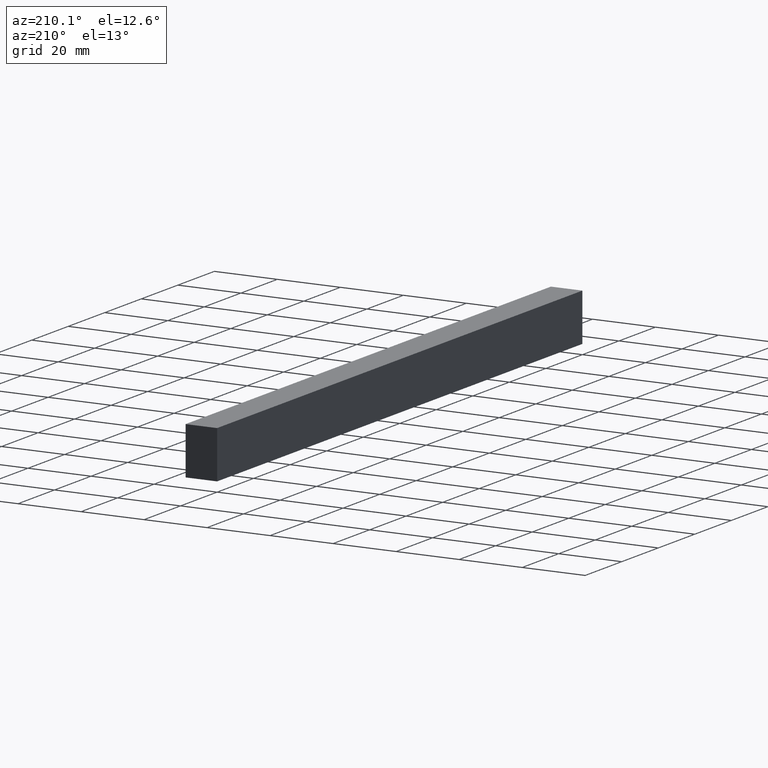
[diagram: clean part render]
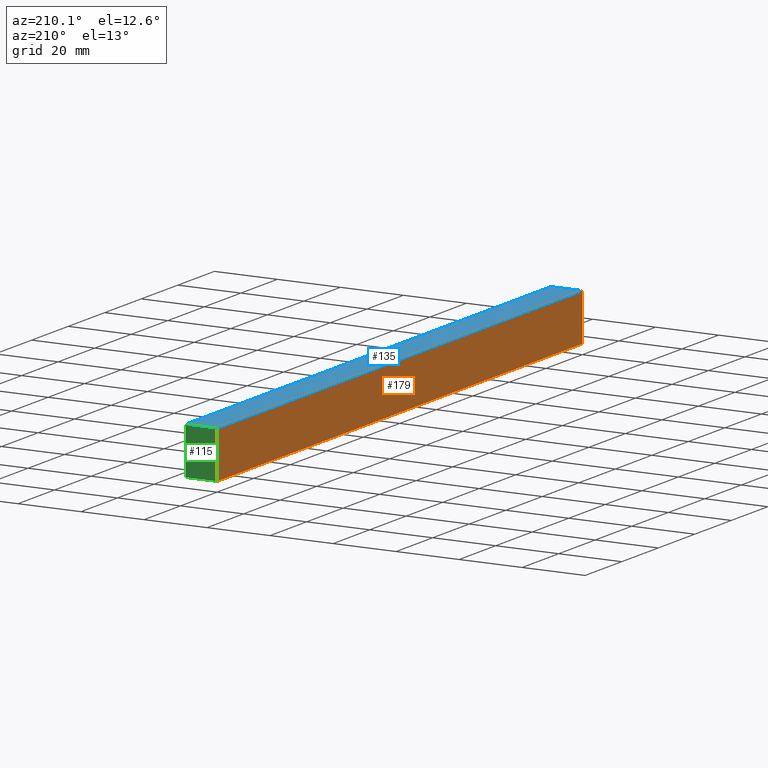
[diagram: same view with three faces highlighted in distinct colors, each labeled with its STEP entity id]
A machine part, auxiliary view with three faces highlighted in distinct colors.
Their STEP definitions:

[orange] entity #179 — the highlighted face is a freeform B-spline surface patch.
#49=CARTESIAN_POINT('',(0.0,0.0,15.0));
#50=VERTEX_POINT('',#49);
#51=CARTESIAN_POINT('',(0.0,0.0,0.0));
#52=VERTEX_POINT('',#51);
#53=CARTESIAN_POINT('',(0.0,0.0,15.0));
#54=CARTESIAN_POINT('',(0.0,0.0,0.0));
#55=QUASI_UNIFORM_CURVE('',1,(#53,#54),.UNSPECIFIED.,.F.,.U.);
#56=EDGE_CURVE('',#50,#52,#55,.T.);
#85=CARTESIAN_POINT('',(0.0,200.0,15.0));
#86=VERTEX_POINT('',#85);
#87=CARTESIAN_POINT('',(0.0,200.0,0.0));
#88=VERTEX_POINT('',#87);
#89=CARTESIAN_POINT('',(0.0,200.0,15.0));
#90=CARTESIAN_POINT('',(0.0,200.0,0.0));
#91=QUASI_UNIFORM_CURVE('',1,(#89,#90),.UNSPECIFIED.,.F.,.U.);
#92=EDGE_CURVE('',#86,#88,#91,.T.);
#128=CARTESIAN_POINT('',(0.0,200.0,15.0));
#129=CARTESIAN_POINT('',(0.0,0.0,15.0));
#130=QUASI_UNIFORM_CURVE('',1,(#128,#129),.UNSPECIFIED.,.F.,.U.);
#131=EDGE_CURVE('',#86,#50,#130,.T.);
#158=CARTESIAN_POINT('',(0.0,200.0,0.0));
#159=CARTESIAN_POINT('',(0.0,0.0,0.0));
#160=QUASI_UNIFORM_CURVE('',1,(#158,#159),.UNSPECIFIED.,.F.,.U.);
#161=EDGE_CURVE('',#88,#52,#160,.T.);
#168=CARTESIAN_POINT('',(0.0,-9.989999612361171,-0.749249970927090));
#169=CARTESIAN_POINT('',(0.0,-9.989999612361171,15.749250373258439));
#170=CARTESIAN_POINT('',(0.0,209.990004976779200,-0.749249970927090));
#171=CARTESIAN_POINT('',(0.0,209.990004976779200,15.749250373258439));
#172=B_SPLINE_SURFACE_WITH_KNOTS('',1,1,((#168,#170),(#169,#171)),.UNSPECIFIED.,.F.,.F.,.U.,(2,2),(2,2),(0.0,16.498500344185530),(0.0,219.980004589140410),.UNSPECIFIED.);
#173=ORIENTED_EDGE('',*,*,#56,.F.);
#174=ORIENTED_EDGE('',*,*,#131,.F.);
#175=ORIENTED_EDGE('',*,*,#92,.T.);
#176=ORIENTED_EDGE('',*,*,#161,.T.);
#177=EDGE_LOOP('',(#173,#174,#175,#176));
#178=FACE_OUTER_BOUND('',#177,.T.);
#179=ADVANCED_FACE('',(#178),#172,.T.);

[blue] entity #135 — the highlighted face is a freeform B-spline surface patch.
#49=CARTESIAN_POINT('',(0.0,0.0,15.0));
#50=VERTEX_POINT('',#49);
#65=CARTESIAN_POINT('',(10.0,0.0,15.0));
#66=VERTEX_POINT('',#65);
#72=CARTESIAN_POINT('',(10.0,0.0,15.0));
#73=CARTESIAN_POINT('',(0.0,0.0,15.0));
#74=QUASI_UNIFORM_CURVE('',1,(#72,#73),.UNSPECIFIED.,.F.,.U.);
#75=EDGE_CURVE('',#66,#50,#74,.T.);
#85=CARTESIAN_POINT('',(0.0,200.0,15.0));
#86=VERTEX_POINT('',#85);
#94=CARTESIAN_POINT('',(10.0,200.0,15.0));
#95=VERTEX_POINT('',#94);
#96=CARTESIAN_POINT('',(10.0,200.0,15.0));
#97=CARTESIAN_POINT('',(0.0,200.0,15.0));
#98=QUASI_UNIFORM_CURVE('',1,(#96,#97),.UNSPECIFIED.,.F.,.U.);
#99=EDGE_CURVE('',#95,#86,#98,.T.);
#116=CARTESIAN_POINT('',(-0.499499980618059,-9.989999612361171,15.0));
#117=CARTESIAN_POINT('',(10.499500248838959,-9.989999612361171,15.0));
#118=CARTESIAN_POINT('',(-0.499499980618059,209.990004976779200,15.0));
#119=CARTESIAN_POINT('',(10.499500248838959,209.990004976779200,15.0));
#120=B_SPLINE_SURFACE_WITH_KNOTS('',1,1,((#116,#118),(#117,#119)),.UNSPECIFIED.,.F.,.F.,.U.,(2,2),(2,2),(0.0,10.999000229457019),(0.0,219.980004589140410),.UNSPECIFIED.);
#121=ORIENTED_EDGE('',*,*,#75,.F.);
#122=CARTESIAN_POINT('',(10.0,200.0,15.0));
#123=CARTESIAN_POINT('',(10.0,0.0,15.0));
#124=QUASI_UNIFORM_CURVE('',1,(#122,#123),.UNSPECIFIED.,.F.,.U.);
#125=EDGE_CURVE('',#95,#66,#124,.T.);
#126=ORIENTED_EDGE('',*,*,#125,.F.);
#127=ORIENTED_EDGE('',*,*,#99,.T.);
#128=CARTESIAN_POINT('',(0.0,200.0,15.0));
#129=CARTESIAN_POINT('',(0.0,0.0,15.0));
#130=QUASI_UNIFORM_CURVE('',1,(#128,#129),.UNSPECIFIED.,.F.,.U.);
#131=EDGE_CURVE('',#86,#50,#130,.T.);
#132=ORIENTED_EDGE('',*,*,#131,.T.);
#133=EDGE_LOOP('',(#121,#126,#127,#132));
#134=FACE_OUTER_BOUND('',#133,.T.);
#135=ADVANCED_FACE('',(#134),#120,.T.);

[green] entity #115 — the highlighted face is a freeform B-spline surface patch.
#80=CARTESIAN_POINT('',(-0.499499980618059,200.0,15.749249970927091));
#81=CARTESIAN_POINT('',(10.499500248838959,200.0,15.749249970927091));
#82=CARTESIAN_POINT('',(-0.499499980618059,200.0,-0.749250373258442));
#83=CARTESIAN_POINT('',(10.499500248838959,200.0,-0.749250373258442));
#84=B_SPLINE_SURFACE_WITH_KNOTS('',1,1,((#80,#82),(#81,#83)),.UNSPECIFIED.,.F.,.F.,.U.,(2,2),(2,2),(0.0,10.999000229457019),(0.0,16.498500344185530),.UNSPECIFIED.);
#85=CARTESIAN_POINT('',(0.0,200.0,15.0));
#86=VERTEX_POINT('',#85);
#87=CARTESIAN_POINT('',(0.0,200.0,0.0));
#88=VERTEX_POINT('',#87);
#89=CARTESIAN_POINT('',(0.0,200.0,15.0));
#90=CARTESIAN_POINT('',(0.0,200.0,0.0));
#91=QUASI_UNIFORM_CURVE('',1,(#89,#90),.UNSPECIFIED.,.F.,.U.);
#92=EDGE_CURVE('',#86,#88,#91,.T.);
#93=ORIENTED_EDGE('',*,*,#92,.F.);
#94=CARTESIAN_POINT('',(10.0,200.0,15.0));
#95=VERTEX_POINT('',#94);
#96=CARTESIAN_POINT('',(10.0,200.0,15.0));
#97=CARTESIAN_POINT('',(0.0,200.0,15.0));
#98=QUASI_UNIFORM_CURVE('',1,(#96,#97),.UNSPECIFIED.,.F.,.U.);
#99=EDGE_CURVE('',#95,#86,#98,.T.);
#100=ORIENTED_EDGE('',*,*,#99,.F.);
#101=CARTESIAN_POINT('',(10.0,200.0,0.0));
#102=VERTEX_POINT('',#101);
#103=CARTESIAN_POINT('',(10.0,200.0,0.0));
#104=CARTESIAN_POINT('',(10.0,200.0,15.0));
#105=QUASI_UNIFORM_CURVE('',1,(#103,#104),.UNSPECIFIED.,.F.,.U.);
#106=EDGE_CURVE('',#102,#95,#105,.T.);
#107=ORIENTED_EDGE('',*,*,#106,.F.);
#108=CARTESIAN_POINT('',(0.0,200.0,0.0));
#109=CARTESIAN_POINT('',(10.0,200.0,0.0));
#110=QUASI_UNIFORM_CURVE('',1,(#108,#109),.UNSPECIFIED.,.F.,.U.);
#111=EDGE_CURVE('',#88,#102,#110,.T.);
#112=ORIENTED_EDGE('',*,*,#111,.F.);
#113=EDGE_LOOP('',(#93,#100,#107,#112));
#114=FACE_OUTER_BOUND('',#113,.T.);
#115=ADVANCED_FACE('',(#114),#84,.T.);